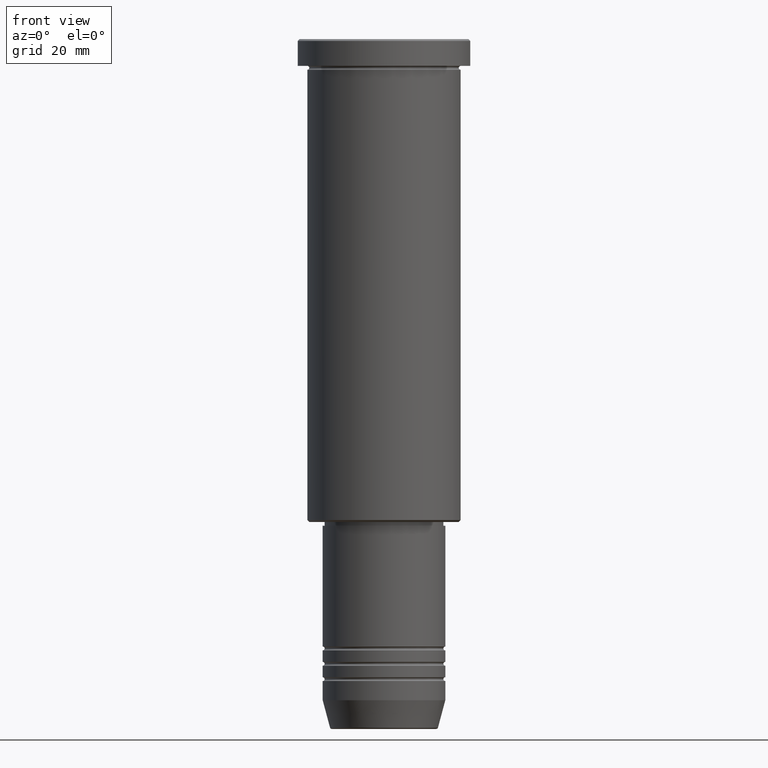
[diagram: clean part render]
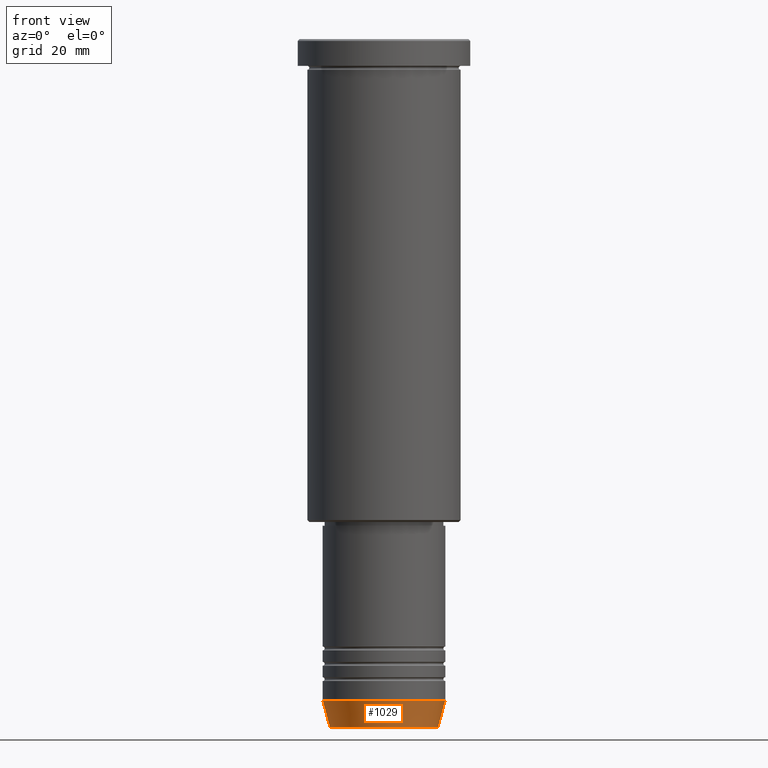
[diagram: same view with one face highlighted and labeled with its STEP entity id]
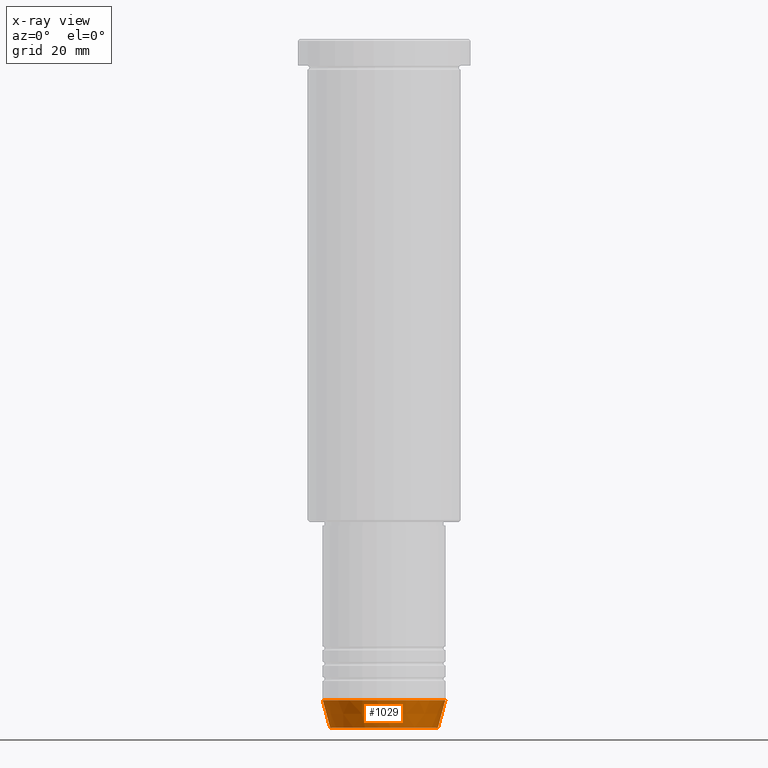
[diagram: x-ray of the same camera — body ghosted, the highlighted face saturated]
A machine part, front view. The second image highlights one B-rep face of the part: STEP entity #1029.
The next image is the same camera in x-ray: the body ghosted, the highlighted face saturated — about 0% of this face is hidden behind the body in this view.
In plain terms, the highlighted conical surface has half-angle 15 deg.
Its self-contained STEP definition (entity closure, byte-faithful):
#11 = VECTOR ( 'NONE', #867, 1000.000000000000000 ) ;
#52 = DIRECTION ( 'NONE',  ( -0.000000000000000000, -0.000000000000000000, 1.000000000000000000 ) ) ;
#81 = VERTEX_POINT ( 'NONE', #1122 ) ;
#138 = AXIS2_PLACEMENT_3D ( 'NONE', #1006, #938, #1048 ) ;
#172 = CARTESIAN_POINT ( 'NONE',  ( -14.08968047592163941, 1.842461544110202058E-15, -179.6294095225512422 ) ) ;
#175 = CARTESIAN_POINT ( 'NONE',  ( -16.00000000000000000, 1.959434878635765131E-15, -172.5000000000000284 ) ) ;
#176 = CARTESIAN_POINT ( 'NONE',  ( 16.00000000000000000, 0.000000000000000000, -172.5000000000000284 ) ) ;
#185 = AXIS2_PLACEMENT_3D ( 'NONE', #604, #52, #926 ) ;
#205 = VECTOR ( 'NONE', #1092, 1000.000000000000000 ) ;
#249 = LINE ( 'NONE', #176, #205 ) ;
#283 = AXIS2_PLACEMENT_3D ( 'NONE', #427, #574, #698 ) ;
#391 = ORIENTED_EDGE ( 'NONE', *, *, #1037, .F. ) ;
#394 = VERTEX_POINT ( 'NONE', #997 ) ;
#427 = CARTESIAN_POINT ( 'NONE',  ( 0.000000000000000000, 0.000000000000000000, -172.5000000000000284 ) ) ;
#537 = CIRCLE ( 'NONE', #283, 16.00000000000000000 ) ;
#558 = CIRCLE ( 'NONE', #138, 14.08968047592163941 ) ;
#574 = DIRECTION ( 'NONE',  ( -0.000000000000000000, -0.000000000000000000, 1.000000000000000000 ) ) ;
#604 = CARTESIAN_POINT ( 'NONE',  ( 0.000000000000000000, 0.000000000000000000, -172.5000000000000284 ) ) ;
#698 = DIRECTION ( 'NONE',  ( 1.000000000000000000, 0.000000000000000000, 0.000000000000000000 ) ) ;
#770 = EDGE_CURVE ( 'NONE', #1148, #940, #1025, .T. ) ;
#834 = EDGE_LOOP ( 'NONE', ( #1151, #1067, #1130, #391 ) ) ;
#867 = DIRECTION ( 'NONE',  ( -0.2588190451025213501, 3.169619151431772337E-17, 0.9659258262890680902 ) ) ;
#897 = CARTESIAN_POINT ( 'NONE',  ( -16.00000000000000000, 1.959434878635765131E-15, -172.5000000000000284 ) ) ;
#910 = CONICAL_SURFACE ( 'NONE', #185, 16.00000000000000000, 0.2617993877991500740 ) ;
#926 = DIRECTION ( 'NONE',  ( 1.000000000000000000, 0.000000000000000000, 0.000000000000000000 ) ) ;
#929 = EDGE_CURVE ( 'NONE', #1148, #81, #558, .T. ) ;
#938 = DIRECTION ( 'NONE',  ( -0.000000000000000000, -0.000000000000000000, 1.000000000000000000 ) ) ;
#940 = VERTEX_POINT ( 'NONE', #897 ) ;
#949 = FACE_OUTER_BOUND ( 'NONE', #834, .T. ) ;
#997 = CARTESIAN_POINT ( 'NONE',  ( 16.00000000000000000, 0.000000000000000000, -172.5000000000000284 ) ) ;
#1006 = CARTESIAN_POINT ( 'NONE',  ( 0.000000000000000000, 0.000000000000000000, -179.6294095225512422 ) ) ;
#1025 = LINE ( 'NONE', #175, #11 ) ;
#1029 = ADVANCED_FACE ( 'NONE', ( #949 ), #910, .T. ) ;
#1037 = EDGE_CURVE ( 'NONE', #940, #394, #537, .T. ) ;
#1048 = DIRECTION ( 'NONE',  ( 1.000000000000000000, 0.000000000000000000, 0.000000000000000000 ) ) ;
#1067 = ORIENTED_EDGE ( 'NONE', *, *, #929, .T. ) ;
#1092 = DIRECTION ( 'NONE',  ( 0.2588190451025213501, 0.000000000000000000, 0.9659258262890680902 ) ) ;
#1122 = CARTESIAN_POINT ( 'NONE',  ( 14.08968047592163941, 0.000000000000000000, -179.6294095225512422 ) ) ;
#1130 = ORIENTED_EDGE ( 'NONE', *, *, #1139, .T. ) ;
#1139 = EDGE_CURVE ( 'NONE', #81, #394, #249, .T. ) ;
#1148 = VERTEX_POINT ( 'NONE', #172 ) ;
#1151 = ORIENTED_EDGE ( 'NONE', *, *, #770, .F. ) ;